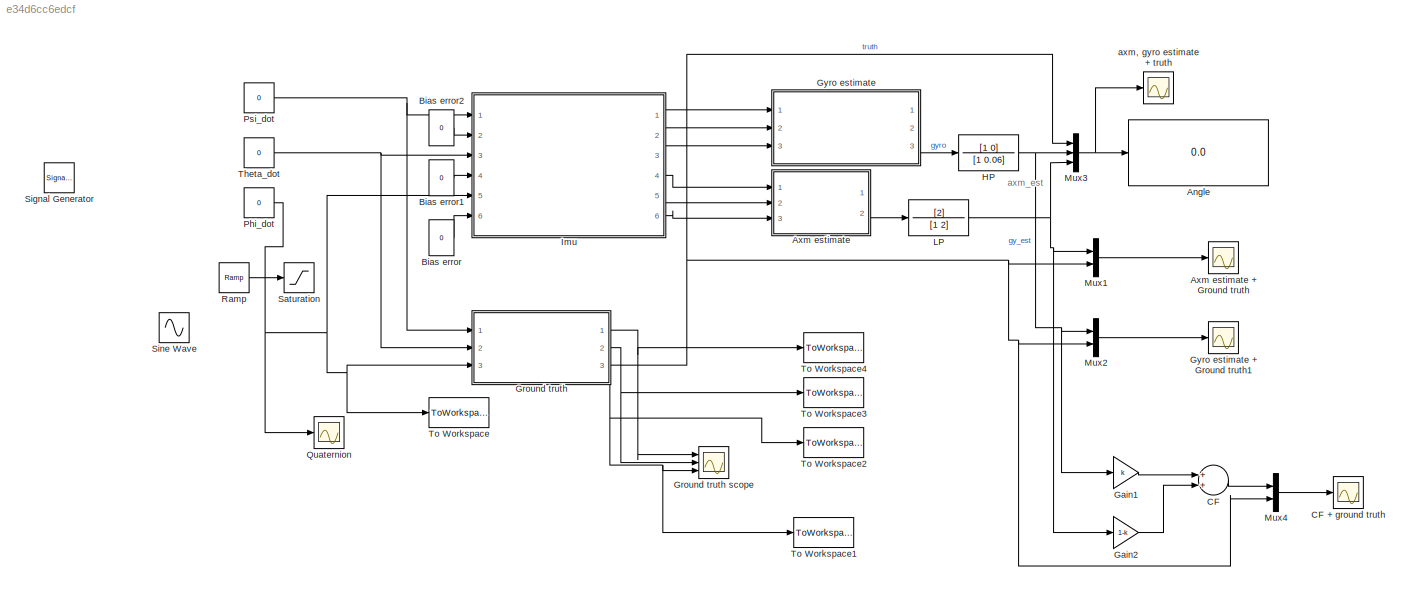
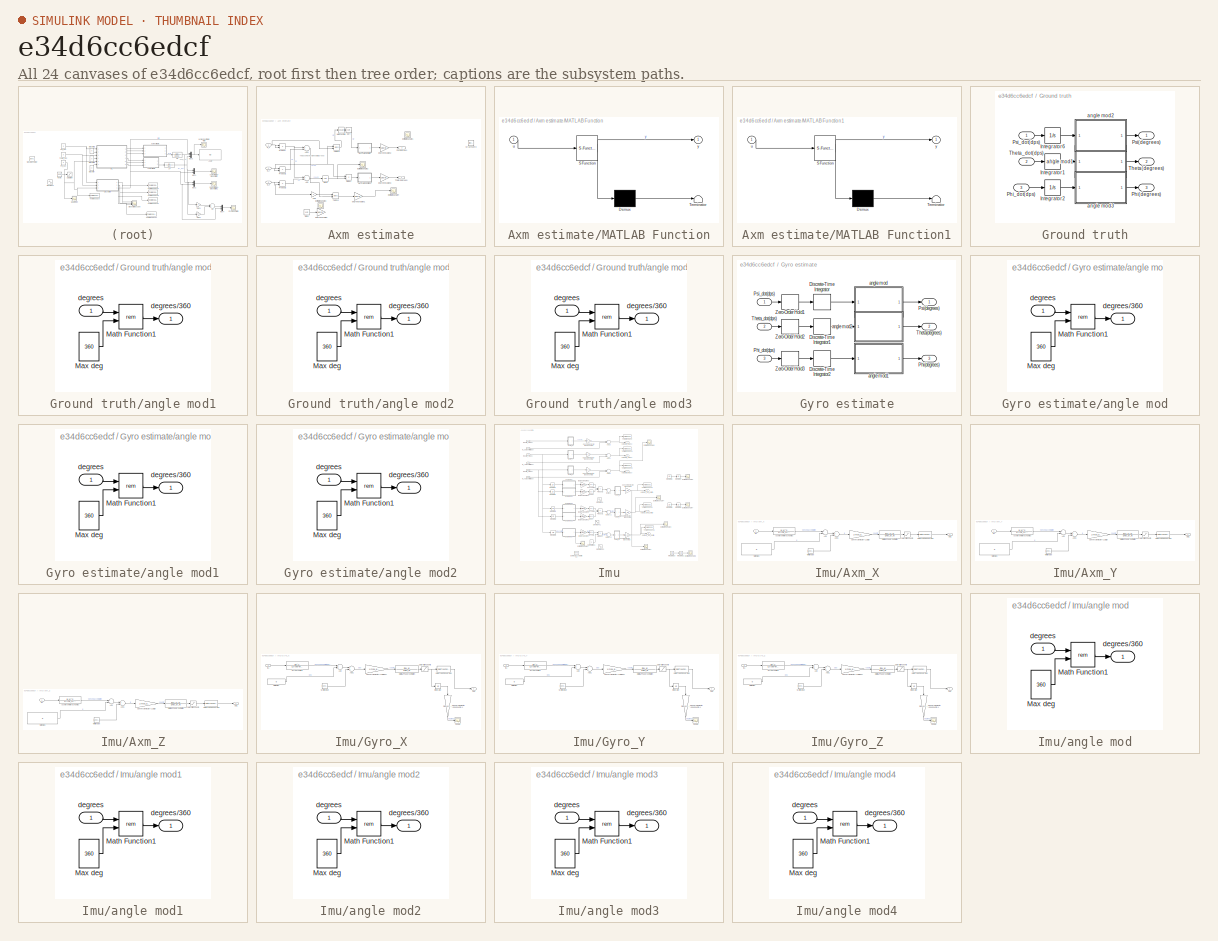
[diagram: thumbnail index - all 24 canvases of the model, root first then tree order]
MODEL slx_e34d6cc6edcf
KIND model
CONFIG AbsTol = auto
CONFIG FixedStep = 1/mpu_sampling_frequency
CONFIG MaxStep = auto
CONFIG MinStep = auto
CONFIG RelTol = 1e-3
CONFIG SampleTimeConstraint = Unconstrained
CONFIG Solver = FixedStepAuto
CONFIG SolverMode = Auto
CONFIG SolverName = FixedStepAuto
CONFIG StartTime = 0.0
CONFIG StopTime = 200
BLOCK [Display] Angle
  Ports = [1]
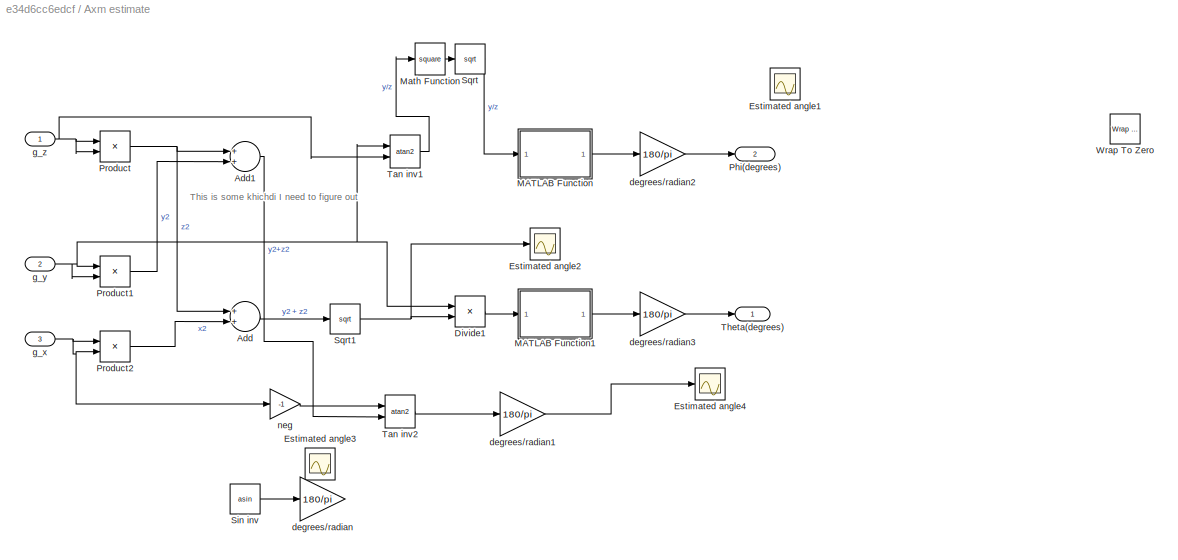
BLOCK [SubSystem] Axm estimate
  Ports = [3, 2]
  RequestExecContextInheritance = off
  Variant = off
BLOCK [Scope] Axm estimate + Ground truth
  Ports = [1]
  ScopeSpecificationString = Simulink.scopes.TimeScopeBlockCfg('CurrentConfiguration', extmgr.ConfigurationSet(extmgr.Configuration('Core','General UI',true),extmgr.Configuration('Core','Source UI',true),extmgr.Configuration('Sources','WiredSimulink',true,'DataLoggingVariableName','ScopeData6'),extmgr.Configuration('Visuals','Time Domain',true,'SerializedDisplays',{struct('MinYLimReal','-25.00000','MaxYLimReal','225.00000','Y...<+1498ch>
BLOCK [Sum] Axm estimate/Add
  InputSameDT = off
  OutDataTypeStr = Inherit: Inherit via internal rule
  Ports = [2, 1]
  SaturateOnIntegerOverflow = off
BLOCK [Sum] Axm estimate/Add1
  InputSameDT = off
  OutDataTypeStr = Inherit: Inherit via internal rule
  Ports = [2, 1]
  SaturateOnIntegerOverflow = off
BLOCK [Product] Axm estimate/Divide1
  InputSameDT = off
  Inputs = */
  OutDataTypeStr = Inherit: Inherit via internal rule
  Ports = [2, 1]
  RndMeth = Floor
  SaturateOnIntegerOverflow = off
BLOCK [Scope] Axm estimate/Estimated angle1
  Ports = [1]
  ScopeSpecificationString = Simulink.scopes.TimeScopeBlockCfg('CurrentConfiguration', extmgr.ConfigurationSet(extmgr.Configuration('Core','General UI',true),extmgr.Configuration('Core','Source UI',true),extmgr.Configuration('Sources','WiredSimulink',true,'DataLoggingVariableName','ScopeData4'),extmgr.Configuration('Visuals','Time Domain',true,'SerializedDisplays',{struct('MinYLimReal','-1.00000','MaxYLimReal','1.00000','YLab...<+1395ch>
BLOCK [Scope] Axm estimate/Estimated angle2
  Ports = [1]
  ScopeSpecificationString = Simulink.scopes.TimeScopeBlockCfg('CurrentConfiguration', extmgr.ConfigurationSet(extmgr.Configuration('Core','General UI',true),extmgr.Configuration('Core','Source UI',true),extmgr.Configuration('Sources','WiredSimulink',true,'DataLoggingVariableName','ScopeData3'),extmgr.Configuration('Visuals','Time Domain',true,'SerializedDisplays',{struct('MinYLimReal','-0.21067','MaxYLimReal','1.89605','YLab...<+1391ch>
BLOCK [Scope] Axm estimate/Estimated angle3
  Ports = [1]
  ScopeSpecificationString = Simulink.scopes.TimeScopeBlockCfg('CurrentConfiguration', extmgr.ConfigurationSet(extmgr.Configuration('Core','General UI',true),extmgr.Configuration('Core','Source UI',true),extmgr.Configuration('Sources','WiredSimulink',true,'DataLoggingVariableName','ScopeData7'),extmgr.Configuration('Visuals','Time Domain',true,'SerializedDisplays',{struct('MinYLimReal','-1.26191','MaxYLimReal','1.26135','YLab...<+1484ch>
BLOCK [Scope] Axm estimate/Estimated angle4
  Ports = [1]
  ScopeSpecificationString = Simulink.scopes.TimeScopeBlockCfg('CurrentConfiguration', extmgr.ConfigurationSet(extmgr.Configuration('Core','General UI',true),extmgr.Configuration('Core','Source UI',true),extmgr.Configuration('Sources','WiredSimulink',true,'DataLoggingVariableName','ScopeData2'),extmgr.Configuration('Visuals','Time Domain',true,'SerializedDisplays',{struct('MinYLimReal','-3.54051','MaxYLimReal','2.82785','YLab...<+1401ch>
BLOCK [SubSystem] Axm estimate/MATLAB Function
  ErrorFcn = Stateflow.Translate.translate
  PermitHierarchicalResolution = ExplicitOnly
  Ports = [1, 1]
  RequestExecContextInheritance = off
  SFBlockType = MATLAB Function
  TreatAsAtomicUnit = on
  Variant = off
BLOCK [Demux] Axm estimate/MATLAB Function/ Demux 
  Outputs = 1
  Ports = [1, 1]
BLOCK [S-Function] Axm estimate/MATLAB Function/ SFunction 
  EnableBusSupport = on
  FunctionName = sf_sfun
  PortCounts = [1 2]
  Ports = [1, 2]
  SFunctionDeploymentMode = off
  Tag = Stateflow S-Function imu_model_with_submodules 1
BLOCK [Terminator] Axm estimate/MATLAB Function/ Terminator 
BLOCK [Inport] Axm estimate/MATLAB Function/u
  IconDisplay = Port number
BLOCK [Outport] Axm estimate/MATLAB Function/y
  IconDisplay = Port number
BLOCK [SubSystem] Axm estimate/MATLAB Function1
  ErrorFcn = Stateflow.Translate.translate
  PermitHierarchicalResolution = ExplicitOnly
  Ports = [1, 1]
  RequestExecContextInheritance = off
  SFBlockType = MATLAB Function
  TreatAsAtomicUnit = on
  Variant = off
BLOCK [Demux] Axm estimate/MATLAB Function1/ Demux 
  Outputs = 1
  Ports = [1, 1]
BLOCK [S-Function] Axm estimate/MATLAB Function1/ SFunction 
  EnableBusSupport = on
  FunctionName = sf_sfun
  PortCounts = [1 2]
  Ports = [1, 2]
  SFunctionDeploymentMode = off
  Tag = Stateflow S-Function imu_model_with_submodules 3
BLOCK [Terminator] Axm estimate/MATLAB Function1/ Terminator 
BLOCK [Inport] Axm estimate/MATLAB Function1/u
  IconDisplay = Port number
BLOCK [Outport] Axm estimate/MATLAB Function1/y
  IconDisplay = Port number
BLOCK [Math] Axm estimate/Math Function
  Operator = square
  Ports = [1, 1]
BLOCK [Outport] Axm estimate/Phi(degrees)
  IconDisplay = Port number
  Port = 2
BLOCK [Product] Axm estimate/Product
  InputSameDT = off
  OutDataTypeStr = Inherit: Inherit via internal rule
  Ports = [2, 1]
  RndMeth = Floor
  SaturateOnIntegerOverflow = off
BLOCK [Product] Axm estimate/Product1
  InputSameDT = off
  OutDataTypeStr = Inherit: Inherit via internal rule
  Ports = [2, 1]
  RndMeth = Floor
  SaturateOnIntegerOverflow = off
BLOCK [Product] Axm estimate/Product2
  InputSameDT = off
  OutDataTypeStr = Inherit: Inherit via internal rule
  Ports = [2, 1]
  RndMeth = Floor
  SaturateOnIntegerOverflow = off
BLOCK [Trigonometry] Axm estimate/Sin inv
  Operator = asin
  Ports = [1, 1]
BLOCK [Sqrt] Axm estimate/Sqrt
BLOCK [Sqrt] Axm estimate/Sqrt1
BLOCK [Trigonometry] Axm estimate/Tan inv1
  Operator = atan2
  Ports = [2, 1]
BLOCK [Trigonometry] Axm estimate/Tan inv2
  Operator = atan2
  Ports = [2, 1]
BLOCK [Outport] Axm estimate/Theta(degrees)
  IconDisplay = Port number
BLOCK [Reference] Axm estimate/Wrap To Zero  REF=simulink/Discontinuities/Wrap To Zero
  Ports = [1, 1]
  SourceBlock = simulink/Discontinuities/Wrap To Zero
  SourceType = Wrap To Zero
BLOCK [Gain] Axm estimate/degrees//radian
  Gain = 180/pi
  OutDataTypeStr = Inherit: Inherit via internal rule
  ParamDataTypeStr = Inherit: Inherit via internal rule
  SaturateOnIntegerOverflow = off
BLOCK [Gain] Axm estimate/degrees//radian1
  Gain = 180/pi
  OutDataTypeStr = Inherit: Inherit via internal rule
  ParamDataTypeStr = Inherit: Inherit via internal rule
  SaturateOnIntegerOverflow = off
BLOCK [Gain] Axm estimate/degrees//radian2
  Gain = 180/pi
  OutDataTypeStr = Inherit: Inherit via internal rule
  ParamDataTypeStr = Inherit: Inherit via internal rule
  SaturateOnIntegerOverflow = off
BLOCK [Gain] Axm estimate/degrees//radian3
  Gain = 180/pi
  OutDataTypeStr = Inherit: Inherit via internal rule
  ParamDataTypeStr = Inherit: Inherit via internal rule
  SaturateOnIntegerOverflow = off
BLOCK [Inport] Axm estimate/g_x
  IconDisplay = Port number
  Port = 3
BLOCK [Inport] Axm estimate/g_y
  IconDisplay = Port number
  Port = 2
BLOCK [Inport] Axm estimate/g_z
  IconDisplay = Port number
BLOCK [Gain] Axm estimate/neg
  Gain = -1
  OutDataTypeStr = Inherit: Inherit via internal rule
  ParamDataTypeStr = Inherit: Inherit via internal rule
  SaturateOnIntegerOverflow = off
BLOCK [Constant] Bias error
  Value = 0
BLOCK [Constant] Bias error1
  Value = 0
BLOCK [Constant] Bias error2
  Value = 0
BLOCK [Sum] CF
  InputSameDT = off
  OutDataTypeStr = Inherit: Inherit via internal rule
  Ports = [2, 1]
  SaturateOnIntegerOverflow = off
BLOCK [Scope] CF + ground truth
  Ports = [1]
  ScopeSpecificationString = Simulink.scopes.TimeScopeBlockCfg('CurrentConfiguration', extmgr.ConfigurationSet(extmgr.Configuration('Core','General UI',true),extmgr.Configuration('Core','Source UI',true),extmgr.Configuration('Sources','WiredSimulink',true,'DataLoggingVariableName','ScopeData3'),extmgr.Configuration('Visuals','Time Domain',true,'SerializedDisplays',{struct('MinYLimReal','-3.51414','MaxYLimReal','31.62727','YLa...<+1492ch>
BLOCK [Gain] Gain1
  Gain = k
  OutDataTypeStr = Inherit: Inherit via internal rule
  ParamDataTypeStr = Inherit: Inherit via internal rule
  SaturateOnIntegerOverflow = off
BLOCK [Gain] Gain2
  Gain = 1-k
  OutDataTypeStr = Inherit: Inherit via internal rule
  ParamDataTypeStr = Inherit: Inherit via internal rule
  SaturateOnIntegerOverflow = off
BLOCK [SubSystem] Ground truth
  Ports = [3, 3]
  RequestExecContextInheritance = off
  Variant = off
BLOCK [Scope] Ground truth scope 
  NumInputPorts = 3
  Ports = [3]
  ScopeSpecificationString = Simulink.scopes.TimeScopeBlockCfg('CurrentConfiguration', extmgr.ConfigurationSet(extmgr.Configuration('Core','General UI',true),extmgr.Configuration('Core','Source UI',true),extmgr.Configuration('Sources','WiredSimulink',true,'DataLoggingVariableName','ScopeData1'),extmgr.Configuration('Visuals','Time Domain',true,'SerializedDisplays',{struct('MinYLimReal','-1.00000','MaxYLimReal','1.00000','YLab...<+2779ch>
BLOCK [Integrator] Ground truth/Integrator1
  Ports = [1, 1]
BLOCK [Integrator] Ground truth/Integrator2
  Ports = [1, 1]
BLOCK [Integrator] Ground truth/Integrator6
  Ports = [1, 1]
BLOCK [Outport] Ground truth/Phi(degrees)
  IconDisplay = Port number
  Port = 3
BLOCK [Inport] Ground truth/Phi_dot(dps)
  IconDisplay = Port number
  Port = 3
BLOCK [Outport] Ground truth/Psi(degrees)
  IconDisplay = Port number
BLOCK [Inport] Ground truth/Psi_dot(dps)
  IconDisplay = Port number
BLOCK [Outport] Ground truth/Theta(degrees)
  IconDisplay = Port number
  Port = 2
BLOCK [Inport] Ground truth/Theta_dot(dps)
  IconDisplay = Port number
  Port = 2
BLOCK [SubSystem] Ground truth/angle mod1
  Ports = [1, 1]
  RequestExecContextInheritance = off
  Variant = off
BLOCK [Math] Ground truth/angle mod1/Math Function1
  Operator = rem
  Ports = [2, 1]
  RndMeth = Zero
BLOCK [Constant] Ground truth/angle mod1/Max deg
  Value = 360
BLOCK [Inport] Ground truth/angle mod1/degrees
  IconDisplay = Port number
BLOCK [Outport] Ground truth/angle mod1/degrees//360
  IconDisplay = Port number
BLOCK [SubSystem] Ground truth/angle mod2
  Ports = [1, 1]
  RequestExecContextInheritance = off
  Variant = off
BLOCK [Math] Ground truth/angle mod2/Math Function1
  Operator = rem
  Ports = [2, 1]
  RndMeth = Zero
BLOCK [Constant] Ground truth/angle mod2/Max deg
  Value = 360
BLOCK [Inport] Ground truth/angle mod2/degrees
  IconDisplay = Port number
BLOCK [Outport] Ground truth/angle mod2/degrees//360
  IconDisplay = Port number
BLOCK [SubSystem] Ground truth/angle mod3
  Ports = [1, 1]
  RequestExecContextInheritance = off
  Variant = off
BLOCK [Math] Ground truth/angle mod3/Math Function1
  Operator = rem
  Ports = [2, 1]
  RndMeth = Zero
BLOCK [Constant] Ground truth/angle mod3/Max deg
  Value = 360
BLOCK [Inport] Ground truth/angle mod3/degrees
  IconDisplay = Port number
BLOCK [Outport] Ground truth/angle mod3/degrees//360
  IconDisplay = Port number
BLOCK [SubSystem] Gyro estimate
  Ports = [3, 3]
  RequestExecContextInheritance = off
  Variant = off
BLOCK [Scope] Gyro estimate + Ground truth1
  Ports = [1]
  ScopeSpecificationString = Simulink.scopes.TimeScopeBlockCfg('CurrentConfiguration', extmgr.ConfigurationSet(extmgr.Configuration('Core','General UI',true),extmgr.Configuration('Core','Source UI',true),extmgr.Configuration('Sources','WiredSimulink',true,'DataLoggingVariableName','ScopeData2'),extmgr.Configuration('Visuals','Time Domain',true,'SerializedDisplays',{struct('MinYLimReal','-21.02633','MaxYLimReal','24.55848','YL...<+1498ch>
BLOCK [DiscreteIntegrator] Gyro estimate/Discrete-Time Integrator
  ICPrevOutput = DiscIntNeverNeededParam
  ICPrevScaledInput = DiscIntNeverNeededParam
  InitialConditionSetting = State (most efficient)
  Ports = [1, 1]
  SampleTime = 1/mpu_sampling_frequency
BLOCK [DiscreteIntegrator] Gyro estimate/Discrete-Time Integrator1
  ICPrevOutput = DiscIntNeverNeededParam
  ICPrevScaledInput = DiscIntNeverNeededParam
  InitialConditionSetting = State (most efficient)
  Ports = [1, 1]
  SampleTime = 1/mpu_sampling_frequency
BLOCK [DiscreteIntegrator] Gyro estimate/Discrete-Time Integrator2
  ICPrevOutput = DiscIntNeverNeededParam
  ICPrevScaledInput = DiscIntNeverNeededParam
  InitialConditionSetting = State (most efficient)
  Ports = [1, 1]
  SampleTime = 1/mpu_sampling_frequency
BLOCK [Outport] Gyro estimate/Phi(degrees)
  IconDisplay = Port number
  Port = 3
BLOCK [Inport] Gyro estimate/Phi_dot(dps)
  IconDisplay = Port number
  Port = 3
BLOCK [Outport] Gyro estimate/Psi(degrees)
  IconDisplay = Port number
BLOCK [Inport] Gyro estimate/Psi_dot(dps)
  IconDisplay = Port number
BLOCK [Outport] Gyro estimate/Theta(degrees)
  IconDisplay = Port number
  Port = 2
BLOCK [Inport] Gyro estimate/Theta_dot(dps)
  IconDisplay = Port number
  Port = 2
BLOCK [ZeroOrderHold] Gyro estimate/Zero-Order Hold1
  SampleTime = 1/mpu_sampling_frequency
BLOCK [ZeroOrderHold] Gyro estimate/Zero-Order Hold2
  SampleTime = 1/mpu_sampling_frequency
BLOCK [ZeroOrderHold] Gyro estimate/Zero-Order Hold3
  SampleTime = 1/mpu_sampling_frequency
BLOCK [SubSystem] Gyro estimate/angle mod
  Ports = [1, 1]
  RequestExecContextInheritance = off
  Variant = off
BLOCK [Math] Gyro estimate/angle mod/Math Function1
  Operator = rem
  Ports = [2, 1]
  RndMeth = Zero
BLOCK [Constant] Gyro estimate/angle mod/Max deg
  Value = 360
BLOCK [Inport] Gyro estimate/angle mod/degrees
  IconDisplay = Port number
BLOCK [Outport] Gyro estimate/angle mod/degrees//360
  IconDisplay = Port number
BLOCK [SubSystem] Gyro estimate/angle mod1
  Ports = [1, 1]
  RequestExecContextInheritance = off
  Variant = off
BLOCK [Math] Gyro estimate/angle mod1/Math Function1
  Operator = rem
  Ports = [2, 1]
  RndMeth = Zero
BLOCK [Constant] Gyro estimate/angle mod1/Max deg
  Value = 360
BLOCK [Inport] Gyro estimate/angle mod1/degrees
  IconDisplay = Port number
BLOCK [Outport] Gyro estimate/angle mod1/degrees//360
  IconDisplay = Port number
BLOCK [SubSystem] Gyro estimate/angle mod2
  Ports = [1, 1]
  RequestExecContextInheritance = off
  Variant = off
BLOCK [Math] Gyro estimate/angle mod2/Math Function1
  Operator = rem
  Ports = [2, 1]
  RndMeth = Zero
BLOCK [Constant] Gyro estimate/angle mod2/Max deg
  Value = 360
BLOCK [Inport] Gyro estimate/angle mod2/degrees
  IconDisplay = Port number
BLOCK [Outport] Gyro estimate/angle mod2/degrees//360
  IconDisplay = Port number
BLOCK [TransferFcn] HP
  Commented = through
  Denominator = [1 0.06]
  Numerator = [1 0]
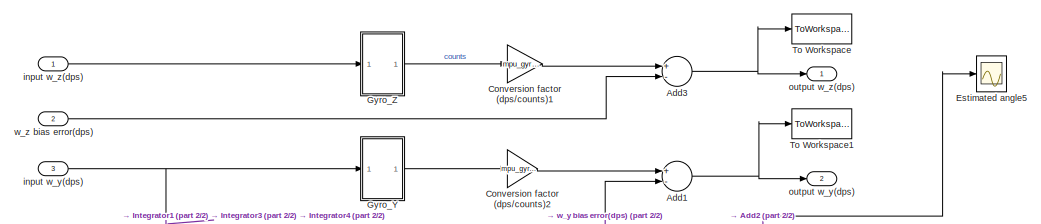
[diagram: Imu - part 1/2, full width, top band]
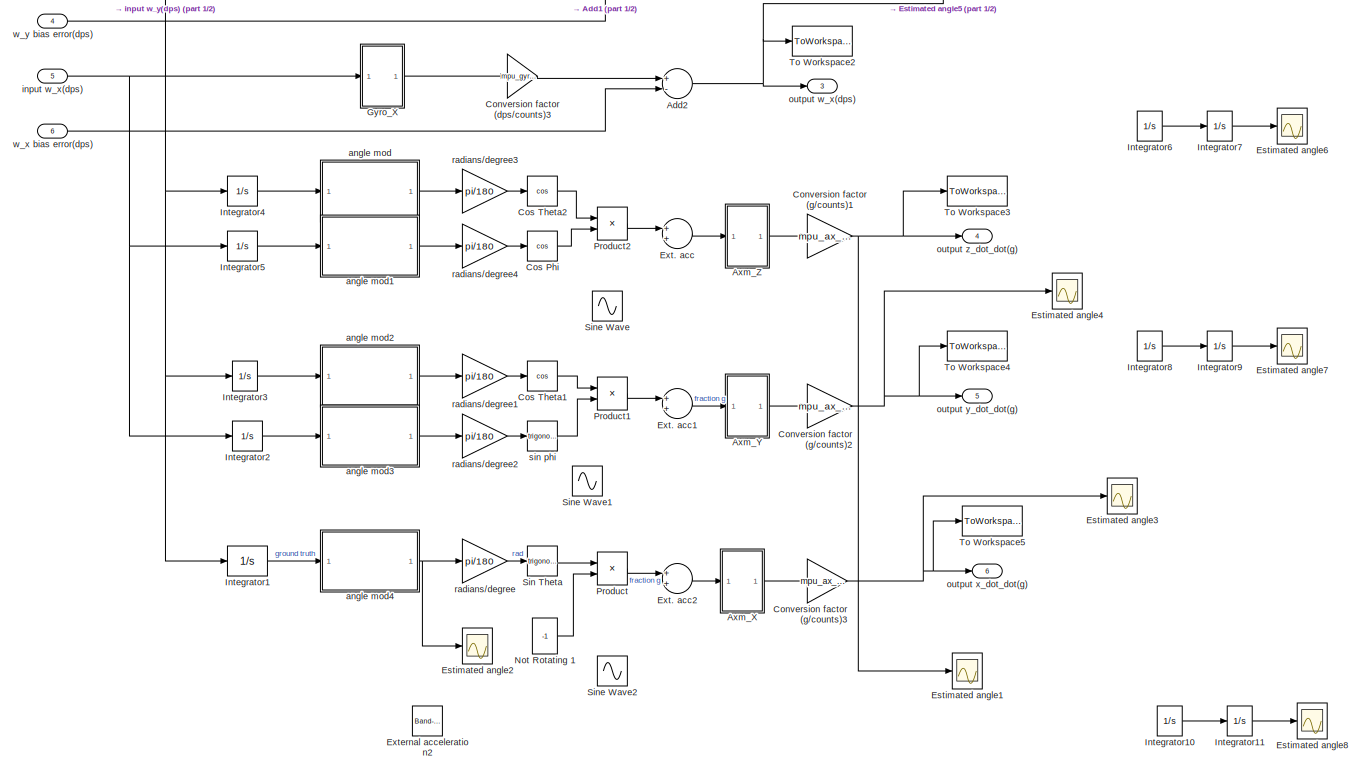
[diagram: Imu - part 2/2, most of the canvas]
BLOCK [SubSystem] Imu
  Ports = [6, 6]
  RequestExecContextInheritance = off
  Variant = off
BLOCK [Sum] Imu/Add1
  InputSameDT = off
  Inputs = +-
  OutDataTypeStr = Inherit: Inherit via internal rule
  Ports = [2, 1]
  SaturateOnIntegerOverflow = off
BLOCK [Sum] Imu/Add2
  InputSameDT = off
  Inputs = +-
  OutDataTypeStr = Inherit: Inherit via internal rule
  Ports = [2, 1]
  SaturateOnIntegerOverflow = off
BLOCK [Sum] Imu/Add3
  InputSameDT = off
  Inputs = +-
  OutDataTypeStr = Inherit: Inherit via internal rule
  Ports = [2, 1]
  SaturateOnIntegerOverflow = off
BLOCK [SubSystem] Imu/Axm_X
  Ports = [1, 1]
  RequestExecContextInheritance = off
  Variant = off
BLOCK [TransferFcn] Imu/Axm_X/Accelerometer dynamics
  Commented = through
  Denominator = [1 2*zeta_ax*wn_ax wn_ax^2]
  Numerator = [w_ax^2]
BLOCK [Sum] Imu/Axm_X/Add
  InputSameDT = off
  OutDataTypeStr = Inherit: Inherit via internal rule
  Ports = [2, 1]
  SaturateOnIntegerOverflow = off
BLOCK [Sum] Imu/Axm_X/Add1
  InputSameDT = off
  OutDataTypeStr = Inherit: Inherit via internal rule
  Ports = [2, 1]
  SaturateOnIntegerOverflow = off
BLOCK [Gain] Imu/Axm_X/Conversion factor (LSB//g)
  Gain = 1/mpu_ax_sensitivity
  OutDataTypeStr = Inherit: Inherit via internal rule
  ParamDataTypeStr = Inherit: Inherit via internal rule
  SaturateOnIntegerOverflow = off
BLOCK [TransferFcn] Imu/Axm_X/DIgital LPF approximation
  Denominator = [1 mpu_ax_w]
  Numerator = [mpu_ax_w]
BLOCK [DataTypeConversion] Imu/Axm_X/Data Type Conversion
  Commented = through
  OutDataTypeStr = int16
  RndMeth = Floor
  SaturateOnIntegerOverflow = off
BLOCK [Inport] Imu/Axm_X/In1
  IconDisplay = Port number
BLOCK [Outport] Imu/Axm_X/Out1
  IconDisplay = Port number
BLOCK [Saturate] Imu/Axm_X/Saturation counts 
  InputPortMap = u0
  LowerLimit = -2^15
  Ports = [1, 1]
  UpperLimit = 2^15
BLOCK [Constant] Imu/Axm_X/Static Bias
  Value = 0
BLOCK [Reference] Imu/Axm_X/White noise  REF=simulink/Sources/Band-Limited
White Noise
  Ports = [0, 1]
  SourceBlock = simulink/Sources/Band-Limited\nWhite Noise
  SourceType = Band-Limited White Noise.
BLOCK [SubSystem] Imu/Axm_Y
  Ports = [1, 1]
  RequestExecContextInheritance = off
  Variant = off
BLOCK [TransferFcn] Imu/Axm_Y/Accelerometer dynamics
  Commented = through
  Denominator = [1 2*zeta_ax*wn_ax wn_ax^2]
  Numerator = [w_ax^2]
BLOCK [Sum] Imu/Axm_Y/Add
  InputSameDT = off
  OutDataTypeStr = Inherit: Inherit via internal rule
  Ports = [2, 1]
  SaturateOnIntegerOverflow = off
BLOCK [Sum] Imu/Axm_Y/Add1
  InputSameDT = off
  OutDataTypeStr = Inherit: Inherit via internal rule
  Ports = [2, 1]
  SaturateOnIntegerOverflow = off
BLOCK [Gain] Imu/Axm_Y/Conversion factor (LSB//g)
  Gain = 1/mpu_ax_sensitivity
  OutDataTypeStr = Inherit: Inherit via internal rule
  ParamDataTypeStr = Inherit: Inherit via internal rule
  SaturateOnIntegerOverflow = off
BLOCK [TransferFcn] Imu/Axm_Y/DIgital LPF approximation
  Denominator = [1 mpu_ax_w]
  Numerator = [mpu_ax_w]
BLOCK [DataTypeConversion] Imu/Axm_Y/Data Type Conversion
  Commented = through
  OutDataTypeStr = int16
  RndMeth = Floor
  SaturateOnIntegerOverflow = off
BLOCK [Inport] Imu/Axm_Y/In1
  IconDisplay = Port number
BLOCK [Outport] Imu/Axm_Y/Out1
  IconDisplay = Port number
BLOCK [Saturate] Imu/Axm_Y/Saturation counts 
  InputPortMap = u0
  LowerLimit = -2^15
  Ports = [1, 1]
  UpperLimit = 2^15
BLOCK [Constant] Imu/Axm_Y/Static Bias
  Value = 0
BLOCK [Reference] Imu/Axm_Y/White noise  REF=simulink/Sources/Band-Limited
White Noise
  Ports = [0, 1]
  SourceBlock = simulink/Sources/Band-Limited\nWhite Noise
  SourceType = Band-Limited White Noise.
BLOCK [SubSystem] Imu/Axm_Z
  Ports = [1, 1]
  RequestExecContextInheritance = off
  Variant = off
BLOCK [TransferFcn] Imu/Axm_Z/Accelerometer dynamics
  Commented = through
  Denominator = [1 2*zeta_ax*wn_ax wn_ax^2]
  Numerator = [w_ax^2]
BLOCK [Sum] Imu/Axm_Z/Add
  InputSameDT = off
  OutDataTypeStr = Inherit: Inherit via internal rule
  Ports = [2, 1]
  SaturateOnIntegerOverflow = off
BLOCK [Sum] Imu/Axm_Z/Add1
  InputSameDT = off
  OutDataTypeStr = Inherit: Inherit via internal rule
  Ports = [2, 1]
  SaturateOnIntegerOverflow = off
BLOCK [Gain] Imu/Axm_Z/Conversion factor (LSB//g)
  Gain = 1/mpu_ax_sensitivity
  OutDataTypeStr = Inherit: Inherit via internal rule
  ParamDataTypeStr = Inherit: Inherit via internal rule
  SaturateOnIntegerOverflow = off
BLOCK [TransferFcn] Imu/Axm_Z/DIgital LPF approximation
  Denominator = [1 mpu_ax_w]
  Numerator = [mpu_ax_w]
BLOCK [DataTypeConversion] Imu/Axm_Z/Data Type Conversion
  Commented = through
  OutDataTypeStr = int16
  RndMeth = Floor
  SaturateOnIntegerOverflow = off
BLOCK [Inport] Imu/Axm_Z/In1
  IconDisplay = Port number
BLOCK [Outport] Imu/Axm_Z/Out1
  IconDisplay = Port number
BLOCK [Saturate] Imu/Axm_Z/Saturation counts 
  InputPortMap = u0
  LowerLimit = -2^15
  Ports = [1, 1]
  UpperLimit = 2^15
BLOCK [Constant] Imu/Axm_Z/Static Bias
  Value = 0
BLOCK [Reference] Imu/Axm_Z/White noise  REF=simulink/Sources/Band-Limited
White Noise
  Ports = [0, 1]
  SourceBlock = simulink/Sources/Band-Limited\nWhite Noise
  SourceType = Band-Limited White Noise.
BLOCK [Gain] Imu/Conversion factor (dps//counts)1
  Gain = mpu_gyro_sensitivity
  OutDataTypeStr = Inherit: Inherit via internal rule
  ParamDataTypeStr = Inherit: Inherit via internal rule
  SaturateOnIntegerOverflow = off
BLOCK [Gain] Imu/Conversion factor (dps//counts)2
  Gain = mpu_gyro_sensitivity
  OutDataTypeStr = Inherit: Inherit via internal rule
  ParamDataTypeStr = Inherit: Inherit via internal rule
  SaturateOnIntegerOverflow = off
BLOCK [Gain] Imu/Conversion factor (dps//counts)3
  Gain = mpu_gyro_sensitivity
  OutDataTypeStr = Inherit: Inherit via internal rule
  ParamDataTypeStr = Inherit: Inherit via internal rule
  SaturateOnIntegerOverflow = off
BLOCK [Gain] Imu/Conversion factor (g//counts)1
  Gain = mpu_ax_sensitivity
  OutDataTypeStr = Inherit: Inherit via internal rule
  ParamDataTypeStr = Inherit: Inherit via internal rule
  SaturateOnIntegerOverflow = off
BLOCK [Gain] Imu/Conversion factor (g//counts)2
  Gain = mpu_ax_sensitivity
  OutDataTypeStr = Inherit: Inherit via internal rule
  ParamDataTypeStr = Inherit: Inherit via internal rule
  SaturateOnIntegerOverflow = off
BLOCK [Gain] Imu/Conversion factor (g//counts)3
  Gain = mpu_ax_sensitivity
  OutDataTypeStr = Inherit: Inherit via internal rule
  ParamDataTypeStr = Inherit: Inherit via internal rule
  SaturateOnIntegerOverflow = off
BLOCK [Trigonometry] Imu/Cos Phi
  Operator = cos
  Ports = [1, 1]
BLOCK [Trigonometry] Imu/Cos Theta1
  Operator = cos
  Ports = [1, 1]
BLOCK [Trigonometry] Imu/Cos Theta2
  Operator = cos
  Ports = [1, 1]
BLOCK [Scope] Imu/Estimated angle1
  Ports = [1]
  ScopeSpecificationString = Simulink.scopes.TimeScopeBlockCfg('CurrentConfiguration', extmgr.ConfigurationSet(extmgr.Configuration('Core','General UI',true),extmgr.Configuration('Core','Source UI',true),extmgr.Configuration('Sources','WiredSimulink',true,'DataLoggingVariableName','ScopeData4'),extmgr.Configuration('Visuals','Time Domain',true,'SerializedDisplays',{struct('MinYLimReal','-1.3647','MaxYLimReal','2.02428','YLabe...<+1507ch>
BLOCK [Scope] Imu/Estimated angle2
  Ports = [1]
  ScopeSpecificationString = Simulink.scopes.TimeScopeBlockCfg('CurrentConfiguration', extmgr.ConfigurationSet(extmgr.Configuration('Core','General UI',true),extmgr.Configuration('Core','Source UI',true),extmgr.Configuration('Sources','WiredSimulink',true,'DataLoggingVariableName','ScopeData1'),extmgr.Configuration('Visuals','Time Domain',true,'SerializedDisplays',{struct('MinYLimReal','-13.5','MaxYLimReal','121.5','YLabelRea...<+1479ch>
BLOCK [Scope] Imu/Estimated angle3
  Ports = [1]
  ScopeSpecificationString = Simulink.scopes.TimeScopeBlockCfg('CurrentConfiguration', extmgr.ConfigurationSet(extmgr.Configuration('Core','General UI',true),extmgr.Configuration('Core','Source UI',true),extmgr.Configuration('Sources','WiredSimulink',true,'DataLoggingVariableName','ScopeData5'),extmgr.Configuration('Visuals','Time Domain',true,'SerializedDisplays',{struct('MinYLimReal','-0.04388','MaxYLimReal','0.03895','YLab...<+1508ch>
BLOCK [Scope] Imu/Estimated angle4
  Ports = [1]
  ScopeSpecificationString = Simulink.scopes.TimeScopeBlockCfg('CurrentConfiguration', extmgr.ConfigurationSet(extmgr.Configuration('Core','General UI',true),extmgr.Configuration('Core','Source UI',true),extmgr.Configuration('Sources','WiredSimulink',true,'DataLoggingVariableName','ScopeData1'),extmgr.Configuration('Visuals','Time Domain',true,'SerializedDisplays',{struct('MinYLimReal','-1.28859','MaxYLimReal','1.28437','YLab...<+1509ch>
BLOCK [Scope] Imu/Estimated angle5
  Ports = [1]
  ScopeSpecificationString = Simulink.scopes.TimeScopeBlockCfg('CurrentConfiguration', extmgr.ConfigurationSet(extmgr.Configuration('Core','General UI',true),extmgr.Configuration('Core','Source UI',true),extmgr.Configuration('Sources','WiredSimulink',true,'DataLoggingVariableName','ScopeData1'),extmgr.Configuration('Visuals','Time Domain',true,'SerializedDisplays',{struct('MinYLimReal','-6.30475','MaxYLimReal','56.74278','YLa...<+1394ch>
BLOCK [Scope] Imu/Estimated angle6
  Ports = [1]
  ScopeSpecificationString = Simulink.scopes.TimeScopeBlockCfg('CurrentConfiguration', extmgr.ConfigurationSet(extmgr.Configuration('Core','General UI',true),extmgr.Configuration('Core','Source UI',true),extmgr.Configuration('Sources','WiredSimulink',true,'DataLoggingVariableName','ScopeData1'),extmgr.Configuration('Visuals','Time Domain',true,'SerializedDisplays',{struct('MinYLimReal','-1.00000','MaxYLimReal','1.00000','YLab...<+1370ch>
BLOCK [Scope] Imu/Estimated angle7
  Ports = [1]
  ScopeSpecificationString = Simulink.scopes.TimeScopeBlockCfg('CurrentConfiguration', extmgr.ConfigurationSet(extmgr.Configuration('Core','General UI',true),extmgr.Configuration('Core','Source UI',true),extmgr.Configuration('Sources','WiredSimulink',true,'DataLoggingVariableName','ScopeData2'),extmgr.Configuration('Visuals','Time Domain',true,'SerializedDisplays',{struct('MinYLimReal','-1.00000','MaxYLimReal','1.00000','YLab...<+1370ch>
BLOCK [Scope] Imu/Estimated angle8
  Ports = [1]
  ScopeSpecificationString = Simulink.scopes.TimeScopeBlockCfg('CurrentConfiguration', extmgr.ConfigurationSet(extmgr.Configuration('Core','General UI',true),extmgr.Configuration('Core','Source UI',true),extmgr.Configuration('Sources','WiredSimulink',true,'DataLoggingVariableName','ScopeData3'),extmgr.Configuration('Visuals','Time Domain',true,'SerializedDisplays',{struct('MinYLimReal','-1.00000','MaxYLimReal','1.00000','YLab...<+1398ch>
BLOCK [Sum] Imu/Ext. acc
  InputSameDT = off
  OutDataTypeStr = Inherit: Inherit via internal rule
  Ports = [2, 1]
  SaturateOnIntegerOverflow = off
BLOCK [Sum] Imu/Ext. acc1
  InputSameDT = off
  OutDataTypeStr = Inherit: Inherit via internal rule
  Ports = [2, 1]
  SaturateOnIntegerOverflow = off
BLOCK [Sum] Imu/Ext. acc2
  InputSameDT = off
  OutDataTypeStr = Inherit: Inherit via internal rule
  Ports = [2, 1]
  SaturateOnIntegerOverflow = off
BLOCK [Reference] Imu/External acceleration2  REF=simulink/Sources/Band-Limited
White Noise
  Ports = [0, 1]
  SourceBlock = simulink/Sources/Band-Limited\nWhite Noise
  SourceType = Band-Limited White Noise.
BLOCK [SubSystem] Imu/Gyro_X
  Ports = [1, 1]
  RequestExecContextInheritance = off
  Variant = off
BLOCK [Sum] Imu/Gyro_X/Add
  InputSameDT = off
  OutDataTypeStr = Inherit: Inherit via internal rule
  Ports = [2, 1]
  SaturateOnIntegerOverflow = off
BLOCK [Sum] Imu/Gyro_X/Add1
  InputSameDT = off
  OutDataTypeStr = Inherit: Inherit via internal rule
  Ports = [2, 1]
  SaturateOnIntegerOverflow = off
BLOCK [Gain] Imu/Gyro_X/Conversion factor (LSB//dps)
  Gain = 1/mpu_gyro_sensitivity
  OutDataTypeStr = Inherit: Inherit via internal rule
  ParamDataTypeStr = Inherit: Inherit via internal rule
  SaturateOnIntegerOverflow = off
BLOCK [Gain] Imu/Gyro_X/Conversion factor (dps//counts)1
  Gain = mpu_gyro_sensitivity
  OutDataTypeStr = Inherit: Inherit via internal rule
  ParamDataTypeStr = Inherit: Inherit via internal rule
  SaturateOnIntegerOverflow = off
BLOCK [TransferFcn] Imu/Gyro_X/DIgital LPF approximation
  Denominator = [1 mpu_w]
  Numerator = [mpu_w]
BLOCK [DataTypeConversion] Imu/Gyro_X/Data Type Conversion
  Commented = through
  OutDataTypeStr = int16
  RndMeth = Floor
  SaturateOnIntegerOverflow = off
BLOCK [TransferFcn] Imu/Gyro_X/Gyro dynamics
  Commented = through
  Denominator = [1 2*zeta*wn wn^2]
  Numerator = [wn^2]
BLOCK [Inport] Imu/Gyro_X/In1
  IconDisplay = Port number
BLOCK [Integrator] Imu/Gyro_X/Integrator
  Ports = [1, 1]
BLOCK [Outport] Imu/Gyro_X/Out1
  IconDisplay = Port number
BLOCK [Saturate] Imu/Gyro_X/Saturation counts 
  InputPortMap = u0
  LowerLimit = -2^15
  Ports = [1, 1]
  UpperLimit = 2^15
BLOCK [Scope] Imu/Gyro_X/Scope
  Ports = [1]
  ScopeSpecificationString = C++SS(StrPVP('SaveName','ScopeData'),StrPVP('LimitDataPoints','on'),StrPVP('DataFormat','Array'),StrPVP('Decimation','1'),StrPVP('BlockParamSampleInput','off'))
BLOCK [Constant] Imu/Gyro_X/Static Bias
  Value = 0
BLOCK [Reference] Imu/Gyro_X/White noise  REF=simulink/Sources/Band-Limited
White Noise
  Ports = [0, 1]
  SourceBlock = simulink/Sources/Band-Limited\nWhite Noise
  SourceType = Band-Limited White Noise.
BLOCK [SubSystem] Imu/Gyro_Y
  Ports = [1, 1]
  RequestExecContextInheritance = off
  Variant = off
BLOCK [Sum] Imu/Gyro_Y/Add
  InputSameDT = off
  OutDataTypeStr = Inherit: Inherit via internal rule
  Ports = [2, 1]
  SaturateOnIntegerOverflow = off
BLOCK [Sum] Imu/Gyro_Y/Add1
  InputSameDT = off
  OutDataTypeStr = Inherit: Inherit via internal rule
  Ports = [2, 1]
  SaturateOnIntegerOverflow = off
BLOCK [Gain] Imu/Gyro_Y/Conversion factor (LSB//dps)
  Gain = 1/mpu_gyro_sensitivity
  OutDataTypeStr = Inherit: Inherit via internal rule
  ParamDataTypeStr = Inherit: Inherit via internal rule
  SaturateOnIntegerOverflow = off
BLOCK [Gain] Imu/Gyro_Y/Conversion factor (dps//counts)1
  Gain = mpu_gyro_sensitivity
  OutDataTypeStr = Inherit: Inherit via internal rule
  ParamDataTypeStr = Inherit: Inherit via internal rule
  SaturateOnIntegerOverflow = off
BLOCK [TransferFcn] Imu/Gyro_Y/DIgital LPF approximation
  Denominator = [1 mpu_w]
  Numerator = [mpu_w]
BLOCK [DataTypeConversion] Imu/Gyro_Y/Data Type Conversion
  Commented = through
  OutDataTypeStr = int16
  RndMeth = Floor
  SaturateOnIntegerOverflow = off
BLOCK [TransferFcn] Imu/Gyro_Y/Gyro dynamics
  Commented = through
  Denominator = [1 2*zeta*wn wn^2]
  Numerator = [wn^2]
BLOCK [Inport] Imu/Gyro_Y/In1
  IconDisplay = Port number
BLOCK [Integrator] Imu/Gyro_Y/Integrator
  Ports = [1, 1]
BLOCK [Outport] Imu/Gyro_Y/Out1
  IconDisplay = Port number
BLOCK [Saturate] Imu/Gyro_Y/Saturation counts 
  InputPortMap = u0
  LowerLimit = -2^15
  Ports = [1, 1]
  UpperLimit = 2^15
BLOCK [Scope] Imu/Gyro_Y/Scope
  Ports = [1]
  ScopeSpecificationString = C++SS(StrPVP('SaveName','ScopeData'),StrPVP('LimitDataPoints','on'),StrPVP('DataFormat','Array'),StrPVP('Decimation','1'),StrPVP('BlockParamSampleInput','off'))
BLOCK [Constant] Imu/Gyro_Y/Static Bias
  Value = 0
BLOCK [Reference] Imu/Gyro_Y/White noise  REF=simulink/Sources/Band-Limited
White Noise
  Ports = [0, 1]
  SourceBlock = simulink/Sources/Band-Limited\nWhite Noise
  SourceType = Band-Limited White Noise.
BLOCK [SubSystem] Imu/Gyro_Z
  Ports = [1, 1]
  RequestExecContextInheritance = off
  Variant = off
BLOCK [Sum] Imu/Gyro_Z/Add
  InputSameDT = off
  OutDataTypeStr = Inherit: Inherit via internal rule
  Ports = [2, 1]
  SaturateOnIntegerOverflow = off
BLOCK [Sum] Imu/Gyro_Z/Add1
  InputSameDT = off
  OutDataTypeStr = Inherit: Inherit via internal rule
  Ports = [2, 1]
  SaturateOnIntegerOverflow = off
BLOCK [Gain] Imu/Gyro_Z/Conversion factor (LSB//dps)
  Gain = 1/mpu_gyro_sensitivity
  OutDataTypeStr = Inherit: Inherit via internal rule
  ParamDataTypeStr = Inherit: Inherit via internal rule
  SaturateOnIntegerOverflow = off
BLOCK [Gain] Imu/Gyro_Z/Conversion factor (dps//counts)1
  Gain = mpu_gyro_sensitivity
  OutDataTypeStr = Inherit: Inherit via internal rule
  ParamDataTypeStr = Inherit: Inherit via internal rule
  SaturateOnIntegerOverflow = off
BLOCK [TransferFcn] Imu/Gyro_Z/DIgital LPF approximation
  Denominator = [1 mpu_w]
  Numerator = [mpu_w]
BLOCK [DataTypeConversion] Imu/Gyro_Z/Data Type Conversion
  Commented = through
  OutDataTypeStr = int16
  RndMeth = Floor
  SaturateOnIntegerOverflow = off
BLOCK [TransferFcn] Imu/Gyro_Z/Gyro dynamics
  Commented = through
  Denominator = [1 2*zeta*wn wn^2]
  Numerator = [wn^2]
BLOCK [Inport] Imu/Gyro_Z/In1
  IconDisplay = Port number
BLOCK [Integrator] Imu/Gyro_Z/Integrator
  Ports = [1, 1]
BLOCK [Outport] Imu/Gyro_Z/Out1
  IconDisplay = Port number
BLOCK [Saturate] Imu/Gyro_Z/Saturation counts 
  InputPortMap = u0
  LowerLimit = -2^15
  Ports = [1, 1]
  UpperLimit = 2^15
BLOCK [Scope] Imu/Gyro_Z/Scope
  Ports = [1]
  ScopeSpecificationString = C++SS(StrPVP('SaveName','ScopeData'),StrPVP('LimitDataPoints','on'),StrPVP('DataFormat','Array'),StrPVP('Decimation','1'),StrPVP('BlockParamSampleInput','off'))
BLOCK [Constant] Imu/Gyro_Z/Static Bias
  Value = 0
BLOCK [Reference] Imu/Gyro_Z/White noise  REF=simulink/Sources/Band-Limited
White Noise
  Ports = [0, 1]
  SourceBlock = simulink/Sources/Band-Limited\nWhite Noise
  SourceType = Band-Limited White Noise.
BLOCK [Integrator] Imu/Integrator1
  Ports = [1, 1]
BLOCK [Integrator] Imu/Integrator10
  Ports = [1, 1]
BLOCK [Integrator] Imu/Integrator11
  Ports = [1, 1]
BLOCK [Integrator] Imu/Integrator2
  Ports = [1, 1]
BLOCK [Integrator] Imu/Integrator3
  Ports = [1, 1]
BLOCK [Integrator] Imu/Integrator4
  Ports = [1, 1]
BLOCK [Integrator] Imu/Integrator5
  Ports = [1, 1]
BLOCK [Integrator] Imu/Integrator6
  Ports = [1, 1]
BLOCK [Integrator] Imu/Integrator7
  Ports = [1, 1]
BLOCK [Integrator] Imu/Integrator8
  Ports = [1, 1]
BLOCK [Integrator] Imu/Integrator9
  Ports = [1, 1]
BLOCK [Constant] Imu/Not Rotating 1
  Value = -1
BLOCK [Product] Imu/Product
  InputSameDT = off
  OutDataTypeStr = Inherit: Inherit via internal rule
  Ports = [2, 1]
  RndMeth = Floor
  SaturateOnIntegerOverflow = off
BLOCK [Product] Imu/Product1
  InputSameDT = off
  OutDataTypeStr = Inherit: Inherit via internal rule
  Ports = [2, 1]
  RndMeth = Floor
  SaturateOnIntegerOverflow = off
BLOCK [Product] Imu/Product2
  InputSameDT = off
  OutDataTypeStr = Inherit: Inherit via internal rule
  Ports = [2, 1]
  RndMeth = Floor
  SaturateOnIntegerOverflow = off
BLOCK [Trigonometry] Imu/Sin Theta
  Ports = [1, 1]
BLOCK [Sin] Imu/Sine Wave
  Amplitude = 0.1
  Bias = -0.1
  Frequency = 0.5
  Ports = [0, 1]
  SampleTime = 0
BLOCK [Sin] Imu/Sine Wave1
  Amplitude = 0.1
  Bias = -0.1
  Frequency = 2
  Ports = [0, 1]
  SampleTime = 0
BLOCK [Sin] Imu/Sine Wave2
  Amplitude = 0.2
  Bias = -0.2
  Frequency = 2
  Ports = [0, 1]
  SampleTime = 0
BLOCK [ToWorkspace] Imu/To Workspace
  FixptAsFi = on
  MaxDataPoints = inf
  Ports = [1]
  SampleTime = -1
  Save2DSignal = 3-D array (concatenate along third dimension)
  VariableName = gz
BLOCK [ToWorkspace] Imu/To Workspace1
  FixptAsFi = on
  MaxDataPoints = inf
  Ports = [1]
  SampleTime = -1
  Save2DSignal = 3-D array (concatenate along third dimension)
  VariableName = gy
BLOCK [ToWorkspace] Imu/To Workspace2
  FixptAsFi = on
  MaxDataPoints = inf
  Ports = [1]
  SampleTime = -1
  Save2DSignal = 3-D array (concatenate along third dimension)
  VariableName = gx
BLOCK [ToWorkspace] Imu/To Workspace3
  FixptAsFi = on
  MaxDataPoints = inf
  Ports = [1]
  SampleTime = -1
  Save2DSignal = 3-D array (concatenate along third dimension)
  VariableName = az
BLOCK [ToWorkspace] Imu/To Workspace4
  FixptAsFi = on
  MaxDataPoints = inf
  Ports = [1]
  SampleTime = -1
  Save2DSignal = 3-D array (concatenate along third dimension)
  VariableName = ay
BLOCK [ToWorkspace] Imu/To Workspace5
  FixptAsFi = on
  MaxDataPoints = inf
  Ports = [1]
  SampleTime = -1
  Save2DSignal = 3-D array (concatenate along third dimension)
  VariableName = ax
BLOCK [SubSystem] Imu/angle mod
  Ports = [1, 1]
  RequestExecContextInheritance = off
  Variant = off
BLOCK [Math] Imu/angle mod/Math Function1
  Operator = rem
  Ports = [2, 1]
  RndMeth = Zero
BLOCK [Constant] Imu/angle mod/Max deg
  Value = 360
BLOCK [Inport] Imu/angle mod/degrees
  IconDisplay = Port number
BLOCK [Outport] Imu/angle mod/degrees//360
  IconDisplay = Port number
BLOCK [SubSystem] Imu/angle mod1
  Ports = [1, 1]
  RequestExecContextInheritance = off
  Variant = off
BLOCK [Math] Imu/angle mod1/Math Function1
  Operator = rem
  Ports = [2, 1]
  RndMeth = Zero
BLOCK [Constant] Imu/angle mod1/Max deg
  Value = 360
BLOCK [Inport] Imu/angle mod1/degrees
  IconDisplay = Port number
BLOCK [Outport] Imu/angle mod1/degrees//360
  IconDisplay = Port number
BLOCK [SubSystem] Imu/angle mod2
  Ports = [1, 1]
  RequestExecContextInheritance = off
  Variant = off
BLOCK [Math] Imu/angle mod2/Math Function1
  Operator = rem
  Ports = [2, 1]
  RndMeth = Zero
BLOCK [Constant] Imu/angle mod2/Max deg
  Value = 360
BLOCK [Inport] Imu/angle mod2/degrees
  IconDisplay = Port number
BLOCK [Outport] Imu/angle mod2/degrees//360
  IconDisplay = Port number
BLOCK [SubSystem] Imu/angle mod3
  Ports = [1, 1]
  RequestExecContextInheritance = off
  Variant = off
BLOCK [Math] Imu/angle mod3/Math Function1
  Operator = rem
  Ports = [2, 1]
  RndMeth = Zero
BLOCK [Constant] Imu/angle mod3/Max deg
  Value = 360
BLOCK [Inport] Imu/angle mod3/degrees
  IconDisplay = Port number
BLOCK [Outport] Imu/angle mod3/degrees//360
  IconDisplay = Port number
BLOCK [SubSystem] Imu/angle mod4
  Ports = [1, 1]
  RequestExecContextInheritance = off
  Variant = off
BLOCK [Math] Imu/angle mod4/Math Function1
  Operator = rem
  Ports = [2, 1]
  RndMeth = Zero
BLOCK [Constant] Imu/angle mod4/Max deg
  Value = 360
BLOCK [Inport] Imu/angle mod4/degrees
  IconDisplay = Port number
BLOCK [Outport] Imu/angle mod4/degrees//360
  IconDisplay = Port number
BLOCK [Inport] Imu/input w_x(dps)
  IconDisplay = Port number
  Port = 5
BLOCK [Inport] Imu/input w_y(dps)
  IconDisplay = Port number
  Port = 3
BLOCK [Inport] Imu/input w_z(dps)
  IconDisplay = Port number
BLOCK [Outport] Imu/output w_x(dps)
  IconDisplay = Port number
  Port = 3
BLOCK [Outport] Imu/output w_y(dps)
  IconDisplay = Port number
  Port = 2
BLOCK [Outport] Imu/output w_z(dps)
  IconDisplay = Port number
BLOCK [Outport] Imu/output x_dot_dot(g)
  IconDisplay = Port number
  Port = 6
BLOCK [Outport] Imu/output y_dot_dot(g)
  IconDisplay = Port number
  Port = 5
BLOCK [Outport] Imu/output z_dot_dot(g)
  IconDisplay = Port number
  Port = 4
BLOCK [Gain] Imu/radians//degree
  Gain = pi/180
  OutDataTypeStr = Inherit: Inherit via internal rule
  ParamDataTypeStr = Inherit: Inherit via internal rule
  SaturateOnIntegerOverflow = off
BLOCK [Gain] Imu/radians//degree1
  Gain = pi/180
  OutDataTypeStr = Inherit: Inherit via internal rule
  ParamDataTypeStr = Inherit: Inherit via internal rule
  SaturateOnIntegerOverflow = off
BLOCK [Gain] Imu/radians//degree2
  Gain = pi/180
  OutDataTypeStr = Inherit: Inherit via internal rule
  ParamDataTypeStr = Inherit: Inherit via internal rule
  SaturateOnIntegerOverflow = off
BLOCK [Gain] Imu/radians//degree3
  Gain = pi/180
  OutDataTypeStr = Inherit: Inherit via internal rule
  ParamDataTypeStr = Inherit: Inherit via internal rule
  SaturateOnIntegerOverflow = off
BLOCK [Gain] Imu/radians//degree4
  Gain = pi/180
  OutDataTypeStr = Inherit: Inherit via internal rule
  ParamDataTypeStr = Inherit: Inherit via internal rule
  SaturateOnIntegerOverflow = off
BLOCK [Trigonometry] Imu/sin phi
  Ports = [1, 1]
BLOCK [Inport] Imu/w_x bias error(dps)
  IconDisplay = Port number
  Port = 6
BLOCK [Inport] Imu/w_y bias error(dps)
  IconDisplay = Port number
  Port = 4
BLOCK [Inport] Imu/w_z bias error(dps)
  IconDisplay = Port number
  Port = 2
BLOCK [TransferFcn] LP
  Denominator = [1 2]
  Numerator = [2]
BLOCK [Mux] Mux1
  DisplayOption = bar
  Inputs = 2
  Ports = [2, 1]
BLOCK [Mux] Mux2
  DisplayOption = bar
  Inputs = 2
  Ports = [2, 1]
BLOCK [Mux] Mux3
  DisplayOption = bar
  Inputs = 3
  Ports = [3, 1]
BLOCK [Mux] Mux4
  DisplayOption = bar
  Inputs = 2
  Ports = [2, 1]
BLOCK [Constant] Phi_dot
  Value = 0
BLOCK [Constant] Psi_dot
  Value = 0
BLOCK [Scope] Quaternion
  Ports = [1]
  ScopeSpecificationString = Simulink.scopes.TimeScopeBlockCfg('CurrentConfiguration', extmgr.ConfigurationSet(extmgr.Configuration('Core','General UI',true),extmgr.Configuration('Core','Source UI',true),extmgr.Configuration('Sources','WiredSimulink',true,'DataLoggingVariableName','ScopeData4'),extmgr.Configuration('Visuals','Time Domain',true,'SerializedDisplays',{struct('MinYLimReal','-1.25','MaxYLimReal','1.25','YLabelReal...<+1468ch>
BLOCK [Reference] Ramp  REF=simulink/Sources/Ramp
  Ports = [0, 1]
  SourceBlock = simulink/Sources/Ramp
  SourceType = Ramp
BLOCK [Saturate] Saturation
  InputPortMap = u0
  Ports = [1, 1]
  UpperLimit = 10
BLOCK [SignalGenerator] Signal Generator
  Frequency = 0.1
  Ports = [0, 1]
  WaveForm = square
BLOCK [Sin] Sine Wave
  Frequency = 0.1
  Ports = [0, 1]
  SampleTime = 0
BLOCK [Constant] Theta_dot
  Value = 0
BLOCK [ToWorkspace] To Workspace
  FixptAsFi = on
  MaxDataPoints = inf
  Ports = [1]
  SampleTime = -1
  Save2DSignal = 3-D array (concatenate along third dimension)
  VariableName = wave
BLOCK [ToWorkspace] To Workspace1
  FixptAsFi = on
  MaxDataPoints = inf
  Ports = [1]
  SampleTime = -1
  Save2DSignal = 3-D array (concatenate along third dimension)
  VariableName = wave1
BLOCK [ToWorkspace] To Workspace2
  FixptAsFi = on
  MaxDataPoints = inf
  Ports = [1]
  SampleTime = -1
  Save2DSignal = 3-D array (concatenate along third dimension)
  VariableName = phi
BLOCK [ToWorkspace] To Workspace3
  FixptAsFi = on
  MaxDataPoints = inf
  Ports = [1]
  SampleTime = -1
  Save2DSignal = 3-D array (concatenate along third dimension)
  VariableName = theta
BLOCK [ToWorkspace] To Workspace4
  FixptAsFi = on
  MaxDataPoints = inf
  Ports = [1]
  SampleTime = -1
  Save2DSignal = 3-D array (concatenate along third dimension)
  VariableName = psi
BLOCK [Scope] axm, gyro estimate + truth
  Ports = [1]
  ScopeSpecificationString = Simulink.scopes.TimeScopeBlockCfg('CurrentConfiguration', extmgr.ConfigurationSet(extmgr.Configuration('Core','General UI',true),extmgr.Configuration('Core','Source UI',true),extmgr.Configuration('Sources','WiredSimulink',true,'DataLoggingVariableName','ScopeData2'),extmgr.Configuration('Visuals','Time Domain',true,'SerializedDisplays',{struct('MinYLimReal','-103.19727','MaxYLimReal','233.69371','...<+1511ch>
ANNOTATION (root): axm_est
ANNOTATION Axm estimate: This is some khichdi I need to figure out
LINE Axm estimate/Add1:1 -> Axm estimate/Tan inv2:2
LINE Axm estimate/Add:1 -> Axm estimate/Sqrt1:1
LINE Axm estimate/Divide1:1 -> Axm estimate/MATLAB Function1:1
LINE Axm estimate/MATLAB Function1:1 -> Axm estimate/degrees//radian3:1
LINE Axm estimate/MATLAB Function:1 -> Axm estimate/degrees//radian2:1
LINE Axm estimate/Math Function:1 -> Axm estimate/Sqrt:1
LINE Axm estimate/Product1:1 -> Axm estimate/Add1:2
LINE Axm estimate/Product2:1 -> Axm estimate/Add:2
NET Axm estimate/Product:1 -> Axm estimate/Add1:1, Axm estimate/Add:1
LINE Axm estimate/Sin inv:1 -> Axm estimate/degrees//radian:1
NET Axm estimate/Sqrt1:1 -> Axm estimate/Divide1:2, Axm estimate/Estimated angle2:1
LINE Axm estimate/Sqrt:1 -> Axm estimate/MATLAB Function:1
LINE Axm estimate/Tan inv1:1 -> Axm estimate/Math Function:1
LINE Axm estimate/Tan inv2:1 -> Axm estimate/degrees//radian1:1
LINE Axm estimate/degrees//radian1:1 -> Axm estimate/Estimated angle4:1
LINE Axm estimate/degrees//radian2:1 -> Axm estimate/Phi(degrees):1
LINE Axm estimate/degrees//radian3:1 -> Axm estimate/Theta(degrees):1
NET Axm estimate/g_x:1 -> Axm estimate/Product2:1, Axm estimate/Product2:2, Axm estimate/neg:1
NET Axm estimate/g_y:1 -> Axm estimate/Divide1:1, Axm estimate/Product1:1, Axm estimate/Product1:2, Axm estimate/Tan inv1:1
NET Axm estimate/g_z:1 -> Axm estimate/Product:1, Axm estimate/Product:2, Axm estimate/Tan inv1:2
LINE Axm estimate/neg:1 -> Axm estimate/Tan inv2:1
LINE Axm estimate:2 -> LP:1
LINE Bias error1:1 -> Imu:4
LINE Bias error2:1 -> Imu:2
LINE Bias error:1 -> Imu:6
LINE CF:1 -> Mux4:1
LINE Gain1:1 -> CF:1
LINE Gain2:1 -> CF:2
LINE Ground truth/Integrator1:1 -> Ground truth/angle mod1:1
LINE Ground truth/Integrator2:1 -> Ground truth/angle mod3:1
LINE Ground truth/Integrator6:1 -> Ground truth/angle mod2:1
LINE Ground truth/Phi_dot(dps):1 -> Ground truth/Integrator2:1
LINE Ground truth/Psi_dot(dps):1 -> Ground truth/Integrator6:1
LINE Ground truth/Theta_dot(dps):1 -> Ground truth/Integrator1:1
LINE Ground truth/angle mod1/Math Function1:1 -> Ground truth/angle mod1/degrees//360:1
LINE Ground truth/angle mod1/Max deg:1 -> Ground truth/angle mod1/Math Function1:2
LINE Ground truth/angle mod1/degrees:1 -> Ground truth/angle mod1/Math Function1:1
LINE Ground truth/angle mod1:1 -> Ground truth/Theta(degrees):1
LINE Ground truth/angle mod2/Math Function1:1 -> Ground truth/angle mod2/degrees//360:1
LINE Ground truth/angle mod2/Max deg:1 -> Ground truth/angle mod2/Math Function1:2
LINE Ground truth/angle mod2/degrees:1 -> Ground truth/angle mod2/Math Function1:1
LINE Ground truth/angle mod2:1 -> Ground truth/Psi(degrees):1
LINE Ground truth/angle mod3/Math Function1:1 -> Ground truth/angle mod3/degrees//360:1
LINE Ground truth/angle mod3/Max deg:1 -> Ground truth/angle mod3/Math Function1:2
LINE Ground truth/angle mod3/degrees:1 -> Ground truth/angle mod3/Math Function1:1
LINE Ground truth/angle mod3:1 -> Ground truth/Phi(degrees):1
NET Ground truth:1 -> Ground truth scope :1, To Workspace4:1
NET Ground truth:2 -> Ground truth scope :2, To Workspace3:1
NET Ground truth:3 -> Ground truth scope :3, Mux1:2, Mux2:2, Mux3:1, Mux4:2, To Workspace1:1, To Workspace2:1
LINE Gyro estimate/Discrete-Time Integrator1:1 -> Gyro estimate/angle mod2:1
LINE Gyro estimate/Discrete-Time Integrator2:1 -> Gyro estimate/angle mod1:1
LINE Gyro estimate/Discrete-Time Integrator:1 -> Gyro estimate/angle mod:1
LINE Gyro estimate/Phi_dot(dps):1 -> Gyro estimate/Zero-Order Hold3:1
LINE Gyro estimate/Psi_dot(dps):1 -> Gyro estimate/Zero-Order Hold1:1
LINE Gyro estimate/Theta_dot(dps):1 -> Gyro estimate/Zero-Order Hold2:1
LINE Gyro estimate/Zero-Order Hold1:1 -> Gyro estimate/Discrete-Time Integrator:1
LINE Gyro estimate/Zero-Order Hold2:1 -> Gyro estimate/Discrete-Time Integrator1:1
LINE Gyro estimate/Zero-Order Hold3:1 -> Gyro estimate/Discrete-Time Integrator2:1
LINE Gyro estimate/angle mod/Math Function1:1 -> Gyro estimate/angle mod/degrees//360:1
LINE Gyro estimate/angle mod/Max deg:1 -> Gyro estimate/angle mod/Math Function1:2
LINE Gyro estimate/angle mod/degrees:1 -> Gyro estimate/angle mod/Math Function1:1
LINE Gyro estimate/angle mod1/Math Function1:1 -> Gyro estimate/angle mod1/degrees//360:1
LINE Gyro estimate/angle mod1/Max deg:1 -> Gyro estimate/angle mod1/Math Function1:2
LINE Gyro estimate/angle mod1/degrees:1 -> Gyro estimate/angle mod1/Math Function1:1
LINE Gyro estimate/angle mod1:1 -> Gyro estimate/Phi(degrees):1
LINE Gyro estimate/angle mod2/Math Function1:1 -> Gyro estimate/angle mod2/degrees//360:1
LINE Gyro estimate/angle mod2/Max deg:1 -> Gyro estimate/angle mod2/Math Function1:2
LINE Gyro estimate/angle mod2/degrees:1 -> Gyro estimate/angle mod2/Math Function1:1
LINE Gyro estimate/angle mod2:1 -> Gyro estimate/Theta(degrees):1
LINE Gyro estimate/angle mod:1 -> Gyro estimate/Psi(degrees):1
LINE Gyro estimate:3 -> HP:1
NET HP:1 -> Gain1:1, Mux2:1, Mux3:2
NET Imu/Add1:1 -> Imu/To Workspace1:1, Imu/output w_y(dps):1
NET Imu/Add2:1 -> Imu/Estimated angle5:1, Imu/To Workspace2:1, Imu/output w_x(dps):1
NET Imu/Add3:1 -> Imu/To Workspace:1, Imu/output w_z(dps):1
LINE Imu/Axm_X/Accelerometer dynamics:1 -> Imu/Axm_X/Add:1
LINE Imu/Axm_X/Add1:1 -> Imu/Axm_X/Conversion factor (LSB//g):1
LINE Imu/Axm_X/Add:1 -> Imu/Axm_X/Add1:1
LINE Imu/Axm_X/Conversion factor (LSB//g):1 -> Imu/Axm_X/DIgital LPF approximation:1
LINE Imu/Axm_X/DIgital LPF approximation:1 -> Imu/Axm_X/Saturation counts :1
LINE Imu/Axm_X/Data Type Conversion:1 -> Imu/Axm_X/Out1:1
LINE Imu/Axm_X/In1:1 -> Imu/Axm_X/Accelerometer dynamics:1
LINE Imu/Axm_X/Saturation counts :1 -> Imu/Axm_X/Data Type Conversion:1
LINE Imu/Axm_X/Static Bias:1 -> Imu/Axm_X/Add:2
LINE Imu/Axm_X/White noise:1 -> Imu/Axm_X/Add1:2
LINE Imu/Axm_X:1 -> Imu/Conversion factor (g//counts)3:1
LINE Imu/Axm_Y/Accelerometer dynamics:1 -> Imu/Axm_Y/Add:1
LINE Imu/Axm_Y/Add1:1 -> Imu/Axm_Y/Conversion factor (LSB//g):1
LINE Imu/Axm_Y/Add:1 -> Imu/Axm_Y/Add1:1
LINE Imu/Axm_Y/Conversion factor (LSB//g):1 -> Imu/Axm_Y/DIgital LPF approximation:1
LINE Imu/Axm_Y/DIgital LPF approximation:1 -> Imu/Axm_Y/Saturation counts :1
LINE Imu/Axm_Y/Data Type Conversion:1 -> Imu/Axm_Y/Out1:1
LINE Imu/Axm_Y/In1:1 -> Imu/Axm_Y/Accelerometer dynamics:1
LINE Imu/Axm_Y/Saturation counts :1 -> Imu/Axm_Y/Data Type Conversion:1
LINE Imu/Axm_Y/Static Bias:1 -> Imu/Axm_Y/Add:2
LINE Imu/Axm_Y/White noise:1 -> Imu/Axm_Y/Add1:2
LINE Imu/Axm_Y:1 -> Imu/Conversion factor (g//counts)2:1
LINE Imu/Axm_Z/Accelerometer dynamics:1 -> Imu/Axm_Z/Add:1
LINE Imu/Axm_Z/Add1:1 -> Imu/Axm_Z/Conversion factor (LSB//g):1
LINE Imu/Axm_Z/Add:1 -> Imu/Axm_Z/Add1:1
LINE Imu/Axm_Z/Conversion factor (LSB//g):1 -> Imu/Axm_Z/DIgital LPF approximation:1
LINE Imu/Axm_Z/DIgital LPF approximation:1 -> Imu/Axm_Z/Saturation counts :1
LINE Imu/Axm_Z/Data Type Conversion:1 -> Imu/Axm_Z/Out1:1
LINE Imu/Axm_Z/In1:1 -> Imu/Axm_Z/Accelerometer dynamics:1
LINE Imu/Axm_Z/Saturation counts :1 -> Imu/Axm_Z/Data Type Conversion:1
LINE Imu/Axm_Z/Static Bias:1 -> Imu/Axm_Z/Add:2
LINE Imu/Axm_Z/White noise:1 -> Imu/Axm_Z/Add1:2
LINE Imu/Axm_Z:1 -> Imu/Conversion factor (g//counts)1:1
LINE Imu/Conversion factor (dps//counts)1:1 -> Imu/Add3:1
LINE Imu/Conversion factor (dps//counts)2:1 -> Imu/Add1:1
LINE Imu/Conversion factor (dps//counts)3:1 -> Imu/Add2:1
NET Imu/Conversion factor (g//counts)1:1 -> Imu/Estimated angle1:1, Imu/To Workspace3:1, Imu/output z_dot_dot(g):1
NET Imu/Conversion factor (g//counts)2:1 -> Imu/Estimated angle4:1, Imu/To Workspace4:1, Imu/output y_dot_dot(g):1
NET Imu/Conversion factor (g//counts)3:1 -> Imu/Estimated angle3:1, Imu/To Workspace5:1, Imu/output x_dot_dot(g):1
LINE Imu/Cos Phi:1 -> Imu/Product2:2
LINE Imu/Cos Theta1:1 -> Imu/Product1:1
LINE Imu/Cos Theta2:1 -> Imu/Product2:1
LINE Imu/Ext. acc1:1 -> Imu/Axm_Y:1
LINE Imu/Ext. acc2:1 -> Imu/Axm_X:1
LINE Imu/Ext. acc:1 -> Imu/Axm_Z:1
LINE Imu/Gyro_X/Add1:1 -> Imu/Gyro_X/Conversion factor (LSB//dps):1
LINE Imu/Gyro_X/Add:1 -> Imu/Gyro_X/Add1:1
LINE Imu/Gyro_X/Conversion factor (LSB//dps):1 -> Imu/Gyro_X/DIgital LPF approximation:1
LINE Imu/Gyro_X/Conversion factor (dps//counts)1:1 -> Imu/Gyro_X/Scope:1
LINE Imu/Gyro_X/DIgital LPF approximation:1 -> Imu/Gyro_X/Saturation counts :1
LINE Imu/Gyro_X/Data Type Conversion:1 -> Imu/Gyro_X/Out1:1
LINE Imu/Gyro_X/Gyro dynamics:1 -> Imu/Gyro_X/Add:1
LINE Imu/Gyro_X/In1:1 -> Imu/Gyro_X/Gyro dynamics:1
LINE Imu/Gyro_X/Integrator:1 -> Imu/Gyro_X/Conversion factor (dps//counts)1:1
NET Imu/Gyro_X/Saturation counts :1 -> Imu/Gyro_X/Data Type Conversion:1, Imu/Gyro_X/Integrator:1
LINE Imu/Gyro_X/Static Bias:1 -> Imu/Gyro_X/Add:2
LINE Imu/Gyro_X/White noise:1 -> Imu/Gyro_X/Add1:2
LINE Imu/Gyro_X:1 -> Imu/Conversion factor (dps//counts)3:1
LINE Imu/Gyro_Y/Add1:1 -> Imu/Gyro_Y/Conversion factor (LSB//dps):1
LINE Imu/Gyro_Y/Add:1 -> Imu/Gyro_Y/Add1:1
LINE Imu/Gyro_Y/Conversion factor (LSB//dps):1 -> Imu/Gyro_Y/DIgital LPF approximation:1
LINE Imu/Gyro_Y/Conversion factor (dps//counts)1:1 -> Imu/Gyro_Y/Scope:1
LINE Imu/Gyro_Y/DIgital LPF approximation:1 -> Imu/Gyro_Y/Saturation counts :1
LINE Imu/Gyro_Y/Data Type Conversion:1 -> Imu/Gyro_Y/Out1:1
LINE Imu/Gyro_Y/Gyro dynamics:1 -> Imu/Gyro_Y/Add:1
LINE Imu/Gyro_Y/In1:1 -> Imu/Gyro_Y/Gyro dynamics:1
LINE Imu/Gyro_Y/Integrator:1 -> Imu/Gyro_Y/Conversion factor (dps//counts)1:1
NET Imu/Gyro_Y/Saturation counts :1 -> Imu/Gyro_Y/Data Type Conversion:1, Imu/Gyro_Y/Integrator:1
LINE Imu/Gyro_Y/Static Bias:1 -> Imu/Gyro_Y/Add:2
LINE Imu/Gyro_Y/White noise:1 -> Imu/Gyro_Y/Add1:2
LINE Imu/Gyro_Y:1 -> Imu/Conversion factor (dps//counts)2:1
LINE Imu/Gyro_Z/Add1:1 -> Imu/Gyro_Z/Conversion factor (LSB//dps):1
LINE Imu/Gyro_Z/Add:1 -> Imu/Gyro_Z/Add1:1
LINE Imu/Gyro_Z/Conversion factor (LSB//dps):1 -> Imu/Gyro_Z/DIgital LPF approximation:1
LINE Imu/Gyro_Z/Conversion factor (dps//counts)1:1 -> Imu/Gyro_Z/Scope:1
LINE Imu/Gyro_Z/DIgital LPF approximation:1 -> Imu/Gyro_Z/Saturation counts :1
LINE Imu/Gyro_Z/Data Type Conversion:1 -> Imu/Gyro_Z/Out1:1
LINE Imu/Gyro_Z/Gyro dynamics:1 -> Imu/Gyro_Z/Add:1
LINE Imu/Gyro_Z/In1:1 -> Imu/Gyro_Z/Gyro dynamics:1
LINE Imu/Gyro_Z/Integrator:1 -> Imu/Gyro_Z/Conversion factor (dps//counts)1:1
NET Imu/Gyro_Z/Saturation counts :1 -> Imu/Gyro_Z/Data Type Conversion:1, Imu/Gyro_Z/Integrator:1
LINE Imu/Gyro_Z/Static Bias:1 -> Imu/Gyro_Z/Add:2
LINE Imu/Gyro_Z/White noise:1 -> Imu/Gyro_Z/Add1:2
LINE Imu/Gyro_Z:1 -> Imu/Conversion factor (dps//counts)1:1
LINE Imu/Integrator10:1 -> Imu/Integrator11:1
LINE Imu/Integrator11:1 -> Imu/Estimated angle8:1
LINE Imu/Integrator1:1 -> Imu/angle mod4:1
LINE Imu/Integrator2:1 -> Imu/angle mod3:1
LINE Imu/Integrator3:1 -> Imu/angle mod2:1
LINE Imu/Integrator4:1 -> Imu/angle mod:1
LINE Imu/Integrator5:1 -> Imu/angle mod1:1
LINE Imu/Integrator6:1 -> Imu/Integrator7:1
LINE Imu/Integrator7:1 -> Imu/Estimated angle6:1
LINE Imu/Integrator8:1 -> Imu/Integrator9:1
LINE Imu/Integrator9:1 -> Imu/Estimated angle7:1
LINE Imu/Not Rotating 1:1 -> Imu/Product:2
LINE Imu/Product1:1 -> Imu/Ext. acc1:1
LINE Imu/Product2:1 -> Imu/Ext. acc:1
LINE Imu/Product:1 -> Imu/Ext. acc2:1
LINE Imu/Sin Theta:1 -> Imu/Product:1
LINE Imu/angle mod/Math Function1:1 -> Imu/angle mod/degrees//360:1
LINE Imu/angle mod/Max deg:1 -> Imu/angle mod/Math Function1:2
LINE Imu/angle mod/degrees:1 -> Imu/angle mod/Math Function1:1
LINE Imu/angle mod1/Math Function1:1 -> Imu/angle mod1/degrees//360:1
LINE Imu/angle mod1/Max deg:1 -> Imu/angle mod1/Math Function1:2
LINE Imu/angle mod1/degrees:1 -> Imu/angle mod1/Math Function1:1
LINE Imu/angle mod1:1 -> Imu/radians//degree4:1
LINE Imu/angle mod2/Math Function1:1 -> Imu/angle mod2/degrees//360:1
LINE Imu/angle mod2/Max deg:1 -> Imu/angle mod2/Math Function1:2
LINE Imu/angle mod2/degrees:1 -> Imu/angle mod2/Math Function1:1
LINE Imu/angle mod2:1 -> Imu/radians//degree1:1
LINE Imu/angle mod3/Math Function1:1 -> Imu/angle mod3/degrees//360:1
LINE Imu/angle mod3/Max deg:1 -> Imu/angle mod3/Math Function1:2
LINE Imu/angle mod3/degrees:1 -> Imu/angle mod3/Math Function1:1
LINE Imu/angle mod3:1 -> Imu/radians//degree2:1
LINE Imu/angle mod4/Math Function1:1 -> Imu/angle mod4/degrees//360:1
LINE Imu/angle mod4/Max deg:1 -> Imu/angle mod4/Math Function1:2
LINE Imu/angle mod4/degrees:1 -> Imu/angle mod4/Math Function1:1
NET Imu/angle mod4:1 -> Imu/Estimated angle2:1, Imu/radians//degree:1
LINE Imu/angle mod:1 -> Imu/radians//degree3:1
NET Imu/input w_x(dps):1 -> Imu/Gyro_X:1, Imu/Integrator2:1, Imu/Integrator5:1
NET Imu/input w_y(dps):1 -> Imu/Gyro_Y:1, Imu/Integrator1:1, Imu/Integrator3:1, Imu/Integrator4:1
LINE Imu/input w_z(dps):1 -> Imu/Gyro_Z:1
LINE Imu/radians//degree1:1 -> Imu/Cos Theta1:1
LINE Imu/radians//degree2:1 -> Imu/sin phi:1
LINE Imu/radians//degree3:1 -> Imu/Cos Theta2:1
LINE Imu/radians//degree4:1 -> Imu/Cos Phi:1
LINE Imu/radians//degree:1 -> Imu/Sin Theta:1
LINE Imu/sin phi:1 -> Imu/Product1:2
LINE Imu/w_x bias error(dps):1 -> Imu/Add2:2
LINE Imu/w_y bias error(dps):1 -> Imu/Add1:2
LINE Imu/w_z bias error(dps):1 -> Imu/Add3:2
LINE Imu:1 -> Gyro estimate:1
LINE Imu:2 -> Gyro estimate:2
LINE Imu:3 -> Gyro estimate:3
LINE Imu:4 -> Axm estimate:1
LINE Imu:5 -> Axm estimate:2
LINE Imu:6 -> Axm estimate:3
NET LP:1 -> Gain2:1, Mux1:1, Mux3:3
LINE Mux1:1 -> Axm estimate + Ground truth:1
LINE Mux2:1 -> Gyro estimate + Ground truth1:1
NET Mux3:1 -> Angle:1, axm, gyro estimate + truth:1
LINE Mux4:1 -> CF + ground truth:1
NET Phi_dot:1 -> Ground truth:3, Imu:5, Quaternion:1, To Workspace:1
NET Psi_dot:1 -> Ground truth:1, Imu:1
LINE Ramp:1 -> Saturation:1
NET Theta_dot:1 -> Ground truth:2, Imu:3
note: NET lines group one-source signal fan-out (src -> all destinations, sorted); 1:1 wires keep LINE
CHART Axm estimate/MATLAB Function states=1 transitions=1
  STATE_LABEL 'eML_blk_kernel()'
  STATE_LABEL "SCRIPT:\nfunction y = fcn(u)\n%#codegen\ny = coder.nullcopy(zeros(size(u)));\ncoder.extrinsic('wrapTo2Pi');\ny = wrapTo2Pi(u);"
CHART Axm estimate/MATLAB Function1 states=1 transitions=1
  STATE_LABEL 'eML_blk_kernel()'
  STATE_LABEL "SCRIPT:\nfunction y = fcn(u)\n%#codegen\ny = coder.nullcopy(zeros(size(u)));\ncoder.extrinsic('wrapTo2Pi');\ny = wrapTo2Pi(u);"
